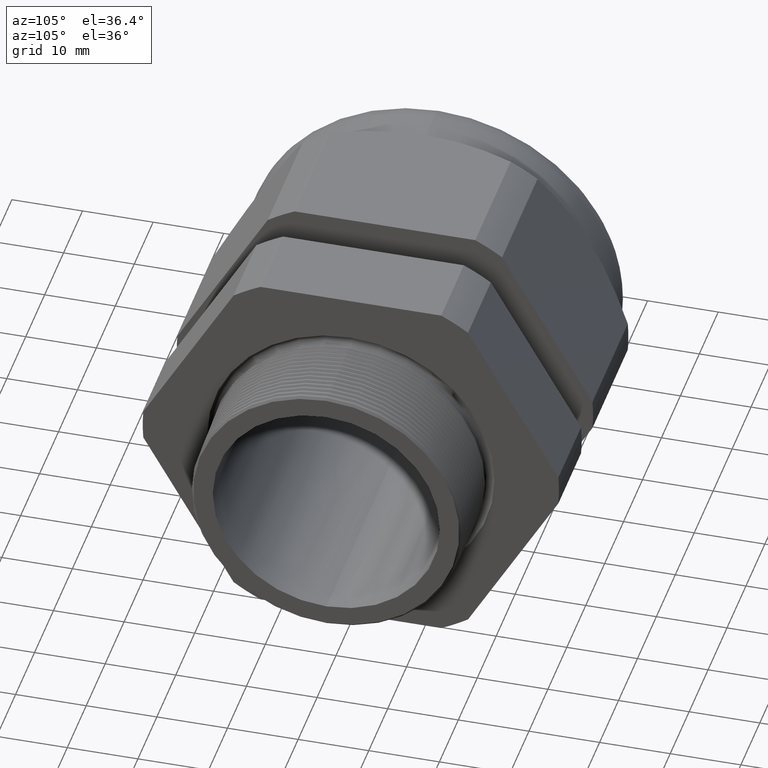
[diagram: clean part render]
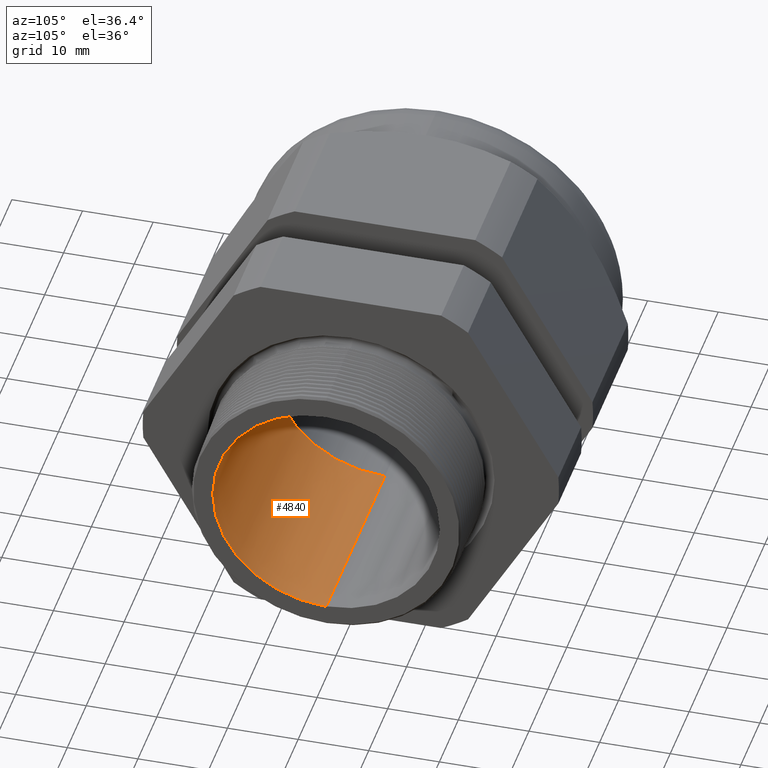
[diagram: same view with one face highlighted and labeled with its STEP entity id]
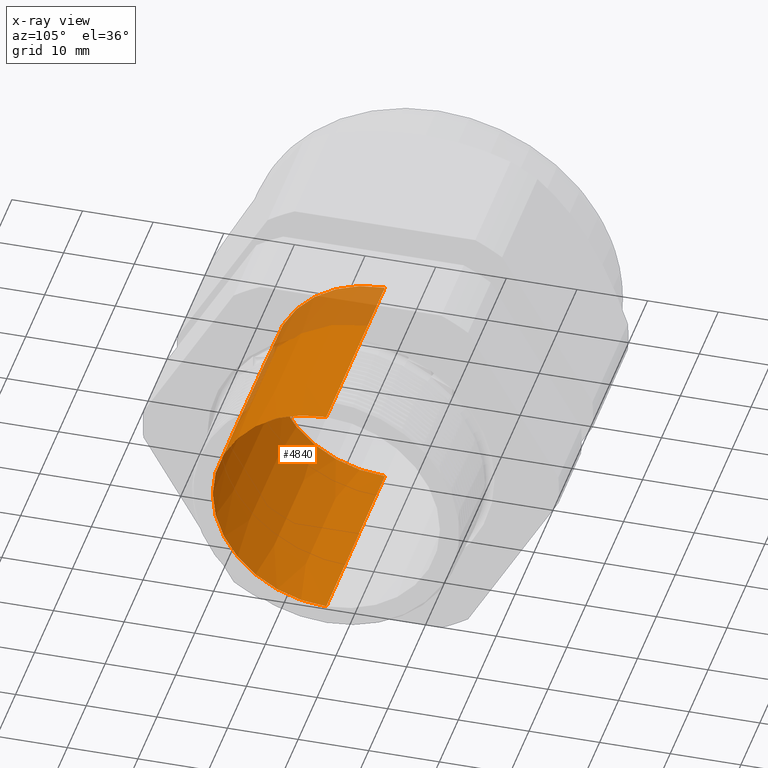
[diagram: x-ray of the same camera — body ghosted, the highlighted face saturated]
A machine part, auxiliary view. The second image highlights one B-rep face of the part: STEP entity #4840.
The next image is the same camera in x-ray: the body ghosted, the highlighted face saturated — about 11% of this face is hidden behind the body in this view.
In plain terms, the highlighted conical surface has half-angle 0.145 deg.
Its self-contained STEP definition (entity closure, byte-faithful):
#2114 = CARTESIAN_POINT ( 'NONE',  ( -1.018802799999999800, 0.0000000000000000000, -0.6300000000000000000 ) ) ;
#2115 = LINE ( 'NONE', #2114, #2178 ) ;
#2117 = CARTESIAN_POINT ( 'NONE',  ( 0.2000000000000000400, 0.0000000000000000000, -0.6330845254709034400 ) ) ;
#2118 = DIRECTION ( 'NONE',  ( 0.0000000000000000000, 0.0000000000000000000, -1.000000000000000000 ) ) ;
#2119 = DIRECTION ( 'NONE',  ( 1.000000000000000000, 0.0000000000000000000, 0.0000000000000000000 ) ) ;
#2120 = CARTESIAN_POINT ( 'NONE',  ( 0.2000000000000000400, 0.0000000000000000000, 0.0000000000000000000 ) ) ;
#2121 = AXIS2_PLACEMENT_3D ( 'NONE', #2120, #2119, #2118 ) ;
#2122 = CIRCLE ( 'NONE', #2121, 0.6330845254709034400 ) ;
#2123 = CARTESIAN_POINT ( 'NONE',  ( 0.2000000000000000400, 7.753049377076629200E-017, 0.6330845254709034400 ) ) ;
#2177 = DIRECTION ( 'NONE',  ( 0.9999967975839531000, 0.0000000000000000000, -0.002530774948145480100 ) ) ;
#2178 = VECTOR ( 'NONE', #2177, 39.37007874015748100 ) ;
#2825 = VECTOR ( 'NONE', #2888, 39.37007874015748100 ) ;
#2826 = CARTESIAN_POINT ( 'NONE',  ( -1.018802799999999800, 7.715274834628325400E-017, 0.6300000000000000000 ) ) ;
#2827 = LINE ( 'NONE', #2826, #2825 ) ;
#2869 = DIRECTION ( 'NONE',  ( 0.0000000000000000000, 0.0000000000000000000, -1.000000000000000000 ) ) ;
#2870 = DIRECTION ( 'NONE',  ( 1.000000000000000000, 0.0000000000000000000, 0.0000000000000000000 ) ) ;
#2871 = CARTESIAN_POINT ( 'NONE',  ( -1.018802799999999800, 0.0000000000000000000, 0.0000000000000000000 ) ) ;
#2872 = AXIS2_PLACEMENT_3D ( 'NONE', #2871, #2870, #2869 ) ;
#2877 = CIRCLE ( 'NONE', #2872, 0.6300000000000000000 ) ;
#2880 = CARTESIAN_POINT ( 'NONE',  ( -1.018802799999999800, 0.0000000000000000000, -0.6300000000000000000 ) ) ;
#2881 = CARTESIAN_POINT ( 'NONE',  ( -1.018802799999999800, 7.715274834628325400E-017, 0.6300000000000000000 ) ) ;
#2888 = DIRECTION ( 'NONE',  ( 0.9999967975839531000, 3.099305439608670900E-019, 0.002530774948145480100 ) ) ;
#2902 = DIRECTION ( 'NONE',  ( 0.0000000000000000000, 0.0000000000000000000, -1.000000000000000000 ) ) ;
#2903 = DIRECTION ( 'NONE',  ( 1.000000000000000000, 0.0000000000000000000, 0.0000000000000000000 ) ) ;
#2904 = CARTESIAN_POINT ( 'NONE',  ( -1.018802799999999800, 0.0000000000000000000, 0.0000000000000000000 ) ) ;
#2905 = AXIS2_PLACEMENT_3D ( 'NONE', #2904, #2903, #2902 ) ;
#2906 = CONICAL_SURFACE ( 'NONE', #2905, 0.6300000000000000000, 0.002530777649680375600 ) ;
#2907 = FACE_OUTER_BOUND ( 'NONE', #4832, .T. ) ;
#4445 = ORIENTED_EDGE ( 'NONE', *, *, #4455, .F. ) ;
#4446 = ORIENTED_EDGE ( 'NONE', *, *, #4452, .T. ) ;
#4450 = VERTEX_POINT ( 'NONE', #2123 ) ;
#4452 = EDGE_CURVE ( 'NONE', #4450, #4453, #2122, .T. ) ;
#4453 = VERTEX_POINT ( 'NONE', #2117 ) ;
#4455 = EDGE_CURVE ( 'NONE', #4824, #4453, #2115, .T. ) ;
#4817 = EDGE_CURVE ( 'NONE', #4823, #4450, #2827, .T. ) ;
#4819 = ORIENTED_EDGE ( 'NONE', *, *, #4817, .T. ) ;
#4823 = VERTEX_POINT ( 'NONE', #2881 ) ;
#4824 = VERTEX_POINT ( 'NONE', #2880 ) ;
#4826 = EDGE_CURVE ( 'NONE', #4823, #4824, #2877, .T. ) ;
#4827 = ORIENTED_EDGE ( 'NONE', *, *, #4826, .F. ) ;
#4832 = EDGE_LOOP ( 'NONE', ( #4827, #4819, #4446, #4445 ) ) ;
#4840 = ADVANCED_FACE ( 'NONE', ( #2907 ), #2906, .F. ) ;